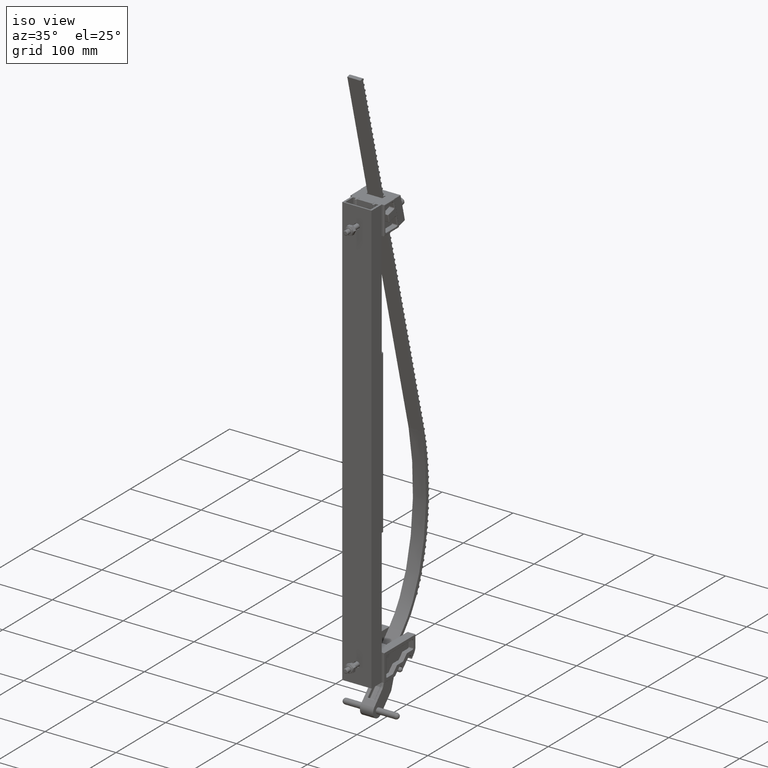
[diagram: clean part render]
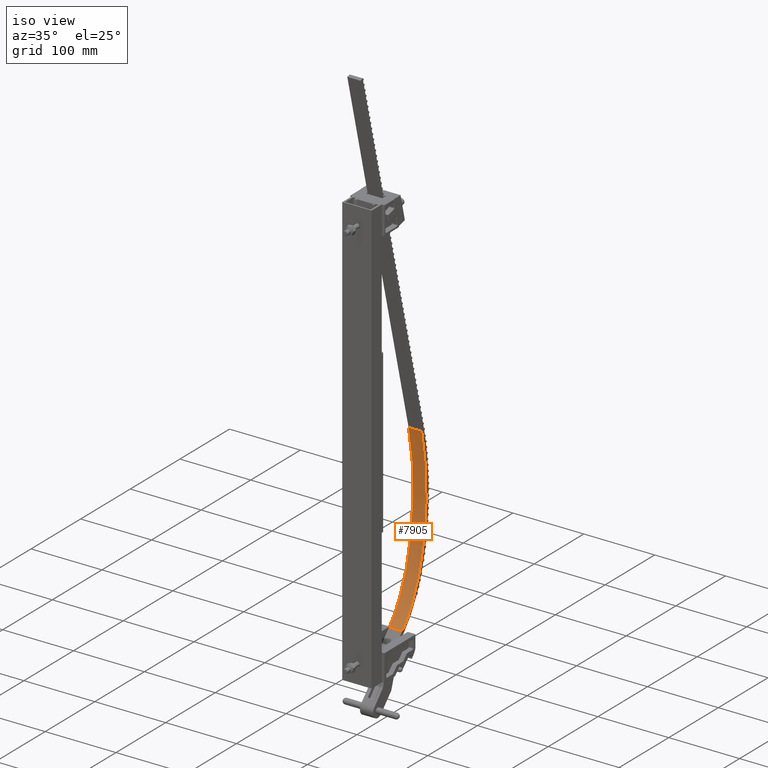
[diagram: same view with one face highlighted and labeled with its STEP entity id]
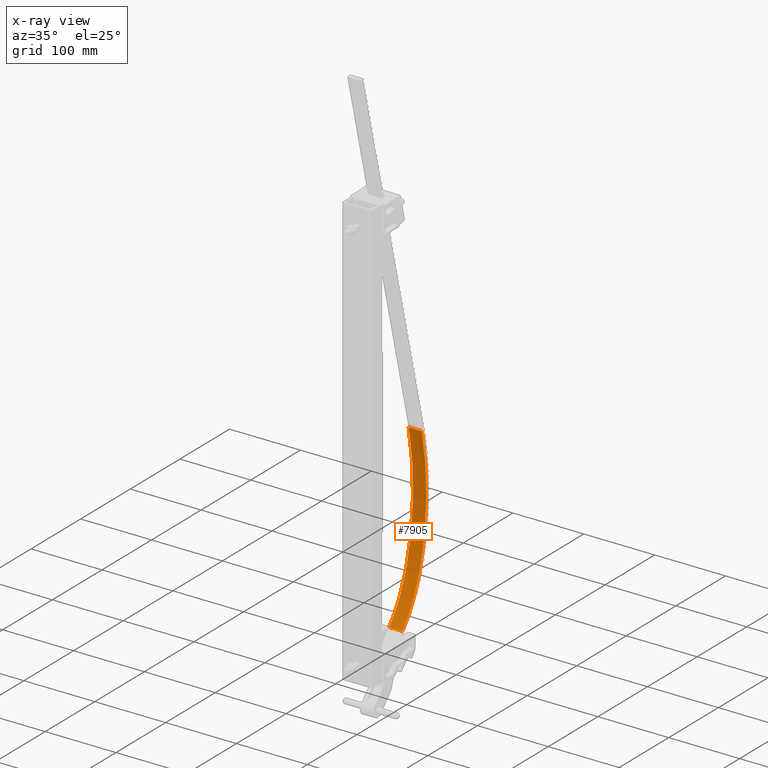
[diagram: x-ray of the same camera — body ghosted, the highlighted face saturated]
A machine part, iso view. The second image highlights one B-rep face of the part: STEP entity #7905.
The next image is the same camera in x-ray: the body ghosted, the highlighted face saturated — about 0% of this face is hidden behind the body in this view.
In plain terms, the highlighted face is a freeform B-spline surface patch.
Its self-contained STEP definition (entity closure, byte-faithful):
#871 = CARTESIAN_POINT ( 'NONE',  ( -11.63104163632180900, -6.154786089411496500, -0.1216666666666666200 ) ) ;
#875 = CARTESIAN_POINT ( 'NONE',  ( -11.63104163632180900, -6.154786089411496500, 0.3649999999999999900 ) ) ;
#876 = CARTESIAN_POINT ( 'NONE',  ( -11.63104163632180900, -6.154786089411496500, 0.1216666666666666600 ) ) ;
#881 = CARTESIAN_POINT ( 'NONE',  ( -11.63104163632180900, -6.154786089411496500, -0.3649999999999999900 ) ) ;
#882 = CARTESIAN_POINT ( 'NONE',  ( -11.60856924477552900, -6.120651361684893200, 0.3649999999999999900 ) ) ;
#883 = CARTESIAN_POINT ( 'NONE',  ( -11.60856924477552900, -6.120651361684893200, 0.1216666666666666600 ) ) ;
#884 = CARTESIAN_POINT ( 'NONE',  ( -11.60856924477552900, -6.120651361684893200, -0.1216666666666666200 ) ) ;
#885 = CARTESIAN_POINT ( 'NONE',  ( -11.60856924477552900, -6.120651361684893200, -0.3649999999999999900 ) ) ;
#886 = CARTESIAN_POINT ( 'NONE',  ( -11.56336162096706300, -6.052906615223022900, 0.3649999999999999900 ) ) ;
#887 = CARTESIAN_POINT ( 'NONE',  ( -11.56336162096706300, -6.052906615223022900, 0.1216666666666666600 ) ) ;
#888 = CARTESIAN_POINT ( 'NONE',  ( -11.56336162096706300, -6.052906615223022900, -0.1216666666666666200 ) ) ;
#889 = CARTESIAN_POINT ( 'NONE',  ( -11.56336162096706300, -6.052906615223022900, -0.3649999999999999900 ) ) ;
#890 = CARTESIAN_POINT ( 'NONE',  ( -11.46810918479961200, -5.913828548213402300, 0.3649999999999999900 ) ) ;
#891 = CARTESIAN_POINT ( 'NONE',  ( -11.46810918479961200, -5.913828548213402300, 0.1216666666666666600 ) ) ;
#892 = CARTESIAN_POINT ( 'NONE',  ( -11.46810918479961200, -5.913828548213402300, -0.1216666666666666200 ) ) ;
#893 = CARTESIAN_POINT ( 'NONE',  ( -11.46810918479961200, -5.913828548213402300, -0.3649999999999999900 ) ) ;
#894 = CARTESIAN_POINT ( 'NONE',  ( -11.34222502115957600, -5.736793446306310600, 0.3649999999999999900 ) ) ;
#895 = CARTESIAN_POINT ( 'NONE',  ( -11.34222502115957600, -5.736793446306310600, 0.1216666666666666600 ) ) ;
#896 = CARTESIAN_POINT ( 'NONE',  ( -11.34222502115957600, -5.736793446306310600, -0.1216666666666666200 ) ) ;
#897 = CARTESIAN_POINT ( 'NONE',  ( -11.34222502115957600, -5.736793446306310600, -0.3649999999999999900 ) ) ;
#898 = CARTESIAN_POINT ( 'NONE',  ( -11.18041873528402000, -5.519684893013219600, 0.3649999999999999900 ) ) ;
#899 = CARTESIAN_POINT ( 'NONE',  ( -11.18041873528402000, -5.519684893013219600, 0.1216666666666666600 ) ) ;
#900 = CARTESIAN_POINT ( 'NONE',  ( -11.18041873528402000, -5.519684893013219600, -0.1216666666666666200 ) ) ;
#901 = CARTESIAN_POINT ( 'NONE',  ( -11.18041873528402000, -5.519684893013219600, -0.3649999999999999900 ) ) ;
#902 = CARTESIAN_POINT ( 'NONE',  ( -10.95112162755937600, -5.225420525473106500, 0.3649999999999999900 ) ) ;
#903 = CARTESIAN_POINT ( 'NONE',  ( -10.95112162755937600, -5.225420525473106500, 0.1216666666666666600 ) ) ;
#904 = CARTESIAN_POINT ( 'NONE',  ( -10.95112162755937600, -5.225420525473106500, -0.1216666666666666200 ) ) ;
#905 = CARTESIAN_POINT ( 'NONE',  ( -10.95112162755937600, -5.225420525473106500, -0.3649999999999999900 ) ) ;
#906 = CARTESIAN_POINT ( 'NONE',  ( -10.63998910796446000, -4.850470746671930100, 0.3650000000000003200 ) ) ;
#907 = CARTESIAN_POINT ( 'NONE',  ( -10.63998910796446000, -4.850470746671930100, 0.1216666666666669900 ) ) ;
#908 = CARTESIAN_POINT ( 'NONE',  ( -10.63998910796446000, -4.850470746671930100, -0.1216666666666662800 ) ) ;
#909 = CARTESIAN_POINT ( 'NONE',  ( -10.63998910796446000, -4.850470746671930100, -0.3649999999999996600 ) ) ;
#910 = CARTESIAN_POINT ( 'NONE',  ( -10.23067011740217300, -4.395558168083829800, 0.3649999999999999900 ) ) ;
#911 = CARTESIAN_POINT ( 'NONE',  ( -10.23067011740217300, -4.395558168083829800, 0.1216666666666666600 ) ) ;
#912 = CARTESIAN_POINT ( 'NONE',  ( -10.23067011740217300, -4.395558168083829800, -0.1216666666666666200 ) ) ;
#913 = CARTESIAN_POINT ( 'NONE',  ( -10.23067011740217300, -4.395558168083829800, -0.3649999999999999900 ) ) ;
#914 = CARTESIAN_POINT ( 'NONE',  ( -9.788599811860292400, -3.941956480966241300, 0.3649999999999999900 ) ) ;
#915 = CARTESIAN_POINT ( 'NONE',  ( -9.788599811860292400, -3.941956480966241300, 0.1216666666666666600 ) ) ;
#916 = CARTESIAN_POINT ( 'NONE',  ( -9.788599811860292400, -3.941956480966241300, -0.1216666666666666200 ) ) ;
#917 = CARTESIAN_POINT ( 'NONE',  ( -9.788599811860292400, -3.941956480966241300, -0.3649999999999999900 ) ) ;
#918 = CARTESIAN_POINT ( 'NONE',  ( -9.159805424630567600, -3.347245370382072600, 0.3649999999999999900 ) ) ;
#919 = CARTESIAN_POINT ( 'NONE',  ( -9.159805424630567600, -3.347245370382072600, 0.1216666666666666600 ) ) ;
#920 = CARTESIAN_POINT ( 'NONE',  ( -9.159805424630567600, -3.347245370382072600, -0.1216666666666666200 ) ) ;
#921 = CARTESIAN_POINT ( 'NONE',  ( -9.159805424630567600, -3.347245370382072600, -0.3649999999999999900 ) ) ;
#922 = CARTESIAN_POINT ( 'NONE',  ( -8.308069545309001200, -2.638350166030812200, 0.3650000000000003200 ) ) ;
#923 = CARTESIAN_POINT ( 'NONE',  ( -8.308069545309001200, -2.638350166030812200, 0.1216666666666669900 ) ) ;
#924 = CARTESIAN_POINT ( 'NONE',  ( -8.308069545309001200, -2.638350166030812200, -0.1216666666666662800 ) ) ;
#925 = CARTESIAN_POINT ( 'NONE',  ( -8.308069545309001200, -2.638350166030812200, -0.3649999999999996600 ) ) ;
#926 = CARTESIAN_POINT ( 'NONE',  ( -7.206935736600928300, -1.892352270403434100, 0.3649999999999999900 ) ) ;
#927 = CARTESIAN_POINT ( 'NONE',  ( -7.206935736600928300, -1.892352270403434100, 0.1216666666666666600 ) ) ;
#928 = CARTESIAN_POINT ( 'NONE',  ( -7.206935736600928300, -1.892352270403434100, -0.1216666666666666200 ) ) ;
#929 = CARTESIAN_POINT ( 'NONE',  ( -7.206935736600928300, -1.892352270403434100, -0.3649999999999999900 ) ) ;
#930 = CARTESIAN_POINT ( 'NONE',  ( -6.245718450763376100, -1.398695466148435400, 0.3650000000000003200 ) ) ;
#931 = CARTESIAN_POINT ( 'NONE',  ( -6.245718450763376100, -1.398695466148435400, 0.1216666666666669900 ) ) ;
#932 = CARTESIAN_POINT ( 'NONE',  ( -6.245718450763376100, -1.398695466148435400, -0.1216666666666662800 ) ) ;
#933 = CARTESIAN_POINT ( 'NONE',  ( -6.245718450763376100, -1.398695466148435400, -0.3649999999999996600 ) ) ;
#934 = CARTESIAN_POINT ( 'NONE',  ( -5.464272849355996400, -1.104387223785562500, 0.3649999999999999900 ) ) ;
#935 = CARTESIAN_POINT ( 'NONE',  ( -5.464272849355996400, -1.104387223785562500, 0.1216666666666666600 ) ) ;
#936 = CARTESIAN_POINT ( 'NONE',  ( -5.464272849355996400, -1.104387223785562500, -0.1216666666666666200 ) ) ;
#937 = CARTESIAN_POINT ( 'NONE',  ( -5.464272849355996400, -1.104387223785562500, -0.3649999999999999900 ) ) ;
#938 = CARTESIAN_POINT ( 'NONE',  ( -4.875321289066301100, -0.9396869062039775500, 0.3649999999999999900 ) ) ;
#939 = CARTESIAN_POINT ( 'NONE',  ( -4.875321289066301100, -0.9396869062039775500, 0.1216666666666666600 ) ) ;
#940 = CARTESIAN_POINT ( 'NONE',  ( -4.875321289066301100, -0.9396869062039775500, -0.1216666666666666200 ) ) ;
#941 = CARTESIAN_POINT ( 'NONE',  ( -4.875321289066301100, -0.9396869062039775500, -0.3649999999999999900 ) ) ;
#942 = CARTESIAN_POINT ( 'NONE',  ( -4.385061063135403000, -0.8537694956389501000, 0.3649999999999999900 ) ) ;
#943 = CARTESIAN_POINT ( 'NONE',  ( -4.385061063135403000, -0.8537694956389501000, 0.1216666666666666600 ) ) ;
#944 = CARTESIAN_POINT ( 'NONE',  ( -4.385061063135403000, -0.8537694956389501000, -0.1216666666666666200 ) ) ;
#945 = CARTESIAN_POINT ( 'NONE',  ( -4.385061063135403000, -0.8537694956389501000, -0.3649999999999999900 ) ) ;
#946 = CARTESIAN_POINT ( 'NONE',  ( -3.994343807446917100, -0.8185218128024578400, 0.3649999999999999900 ) ) ;
#947 = CARTESIAN_POINT ( 'NONE',  ( -3.994343807446917100, -0.8185218128024578400, 0.1216666666666666600 ) ) ;
#948 = CARTESIAN_POINT ( 'NONE',  ( -3.994343807446917100, -0.8185218128024578400, -0.1216666666666666200 ) ) ;
#949 = CARTESIAN_POINT ( 'NONE',  ( -3.994343807446917100, -0.8185218128024578400, -0.3649999999999999900 ) ) ;
#950 = CARTESIAN_POINT ( 'NONE',  ( -3.800322297489636900, -0.8124999999999990000, 0.3649999999999999900 ) ) ;
#951 = CARTESIAN_POINT ( 'NONE',  ( -3.800322297489636900, -0.8124999999999990000, 0.1216666666666666600 ) ) ;
#952 = CARTESIAN_POINT ( 'NONE',  ( -3.800322297489636900, -0.8124999999999990000, -0.1216666666666666200 ) ) ;
#953 = CARTESIAN_POINT ( 'NONE',  ( -3.800322297489636900, -0.8124999999999990000, -0.3649999999999999900 ) ) ;
#954 = CARTESIAN_POINT ( 'NONE',  ( -3.703076168339256600, -0.8125000000000012200, 0.3649999999999999900 ) ) ;
#955 = CARTESIAN_POINT ( 'NONE',  ( -3.703076168339256600, -0.8125000000000012200, 0.1216666666666666600 ) ) ;
#956 = CARTESIAN_POINT ( 'NONE',  ( -3.703076168339256600, -0.8125000000000012200, -0.1216666666666666200 ) ) ;
#957 = CARTESIAN_POINT ( 'NONE',  ( -3.703076168339256600, -0.8125000000000012200, -0.3649999999999999900 ) ) ;
#7905 = ADVANCED_FACE ( 'NONE', ( #35902 ), #42992, .F. ) ;
#12723 = CARTESIAN_POINT ( 'NONE',  ( -11.63104163525621200, -6.154786090112280000, 0.3649999999999999900 ) ) ;
#12733 = CARTESIAN_POINT ( 'NONE',  ( -11.60856924477530100, -6.120651361684552100, 0.3649999999999999900 ) ) ;
#12734 = CARTESIAN_POINT ( 'NONE',  ( -11.56336162096694200, -6.052906615222847900, 0.3649999999999999900 ) ) ;
#12735 = CARTESIAN_POINT ( 'NONE',  ( -11.46810918479961200, -5.913828548213402300, 0.3649999999999999900 ) ) ;
#12736 = CARTESIAN_POINT ( 'NONE',  ( -11.34222502115957600, -5.736793446306310600, 0.3649999999999999900 ) ) ;
#12737 = CARTESIAN_POINT ( 'NONE',  ( -11.18041873528402000, -5.519684893013219600, 0.3649999999999999900 ) ) ;
#12738 = CARTESIAN_POINT ( 'NONE',  ( -10.95112162755937600, -5.225420525473106500, 0.3649999999999999900 ) ) ;
#12739 = CARTESIAN_POINT ( 'NONE',  ( -10.63998910796446000, -4.850470746671930100, 0.3650000000000003200 ) ) ;
#12740 = CARTESIAN_POINT ( 'NONE',  ( -10.23067011740217300, -4.395558168083829800, 0.3649999999999999900 ) ) ;
#12741 = CARTESIAN_POINT ( 'NONE',  ( -9.788599811860292400, -3.941956480966241300, 0.3649999999999999900 ) ) ;
#12742 = CARTESIAN_POINT ( 'NONE',  ( -9.159805424630567600, -3.347245370382072600, 0.3649999999999999900 ) ) ;
#12743 = CARTESIAN_POINT ( 'NONE',  ( -8.308069545309001200, -2.638350166030812200, 0.3650000000000003200 ) ) ;
#12744 = CARTESIAN_POINT ( 'NONE',  ( -7.206935736600928300, -1.892352270403434100, 0.3649999999999999900 ) ) ;
#12745 = CARTESIAN_POINT ( 'NONE',  ( -6.245718450763376100, -1.398695466148435400, 0.3650000000000003200 ) ) ;
#12746 = CARTESIAN_POINT ( 'NONE',  ( -5.464272849355996400, -1.104387223785562500, 0.3649999999999999900 ) ) ;
#12747 = CARTESIAN_POINT ( 'NONE',  ( -4.875321289066301100, -0.9396869062039775500, 0.3649999999999999900 ) ) ;
#12748 = CARTESIAN_POINT ( 'NONE',  ( -4.385061063135403000, -0.8537694956389501000, 0.3649999999999999900 ) ) ;
#12749 = CARTESIAN_POINT ( 'NONE',  ( -3.994343807446917100, -0.8185218128024578400, 0.3649999999999999900 ) ) ;
#12750 = CARTESIAN_POINT ( 'NONE',  ( -3.800322297489636900, -0.8124999999999990000, 0.3649999999999999900 ) ) ;
#12751 = CARTESIAN_POINT ( 'NONE',  ( -3.703076168339256600, -0.8125000000000012200, 0.3649999999999999900 ) ) ;
#12760 = CARTESIAN_POINT ( 'NONE',  ( -11.63104163525621200, -6.154786090112280000, 0.3649999999999999900 ) ) ;
#12761 = DIRECTION ( 'NONE',  ( 2.280301054154487300E-031, -1.201780285297635200E-031, -1.000000000000000000 ) ) ;
#12766 = CARTESIAN_POINT ( 'NONE',  ( -11.63104163525621200, -6.154786090112280000, -0.3649999999999999900 ) ) ;
#12767 = CARTESIAN_POINT ( 'NONE',  ( -3.703076168339256600, -0.8125000000000012200, 0.3649999999999999900 ) ) ;
#12768 = DIRECTION ( 'NONE',  ( 2.280301054154487300E-031, -1.201780285297635200E-031, -1.000000000000000000 ) ) ;
#12769 = CARTESIAN_POINT ( 'NONE',  ( -11.60856924477530100, -6.120651361684552100, -0.3649999999999999900 ) ) ;
#12770 = CARTESIAN_POINT ( 'NONE',  ( -11.56336162096694200, -6.052906615222847900, -0.3649999999999999900 ) ) ;
#12771 = CARTESIAN_POINT ( 'NONE',  ( -11.46810918479961200, -5.913828548213402300, -0.3649999999999999900 ) ) ;
#12772 = CARTESIAN_POINT ( 'NONE',  ( -11.34222502115957600, -5.736793446306310600, -0.3649999999999999900 ) ) ;
#12773 = CARTESIAN_POINT ( 'NONE',  ( -11.18041873528402000, -5.519684893013219600, -0.3649999999999999900 ) ) ;
#12774 = CARTESIAN_POINT ( 'NONE',  ( -10.95112162755937600, -5.225420525473106500, -0.3649999999999999900 ) ) ;
#12775 = CARTESIAN_POINT ( 'NONE',  ( -10.63998910796446000, -4.850470746671930100, -0.3649999999999996600 ) ) ;
#12776 = CARTESIAN_POINT ( 'NONE',  ( -10.23067011740217300, -4.395558168083829800, -0.3649999999999999900 ) ) ;
#12777 = CARTESIAN_POINT ( 'NONE',  ( -9.788599811860292400, -3.941956480966241300, -0.3649999999999999900 ) ) ;
#12778 = CARTESIAN_POINT ( 'NONE',  ( -9.159805424630567600, -3.347245370382072600, -0.3649999999999999900 ) ) ;
#12779 = CARTESIAN_POINT ( 'NONE',  ( -8.308069545309001200, -2.638350166030812200, -0.3649999999999996600 ) ) ;
#12780 = CARTESIAN_POINT ( 'NONE',  ( -7.206935736600928300, -1.892352270403434100, -0.3649999999999999900 ) ) ;
#12781 = CARTESIAN_POINT ( 'NONE',  ( -6.245718450763376100, -1.398695466148435400, -0.3649999999999996600 ) ) ;
#12782 = CARTESIAN_POINT ( 'NONE',  ( -5.464272849355996400, -1.104387223785562500, -0.3649999999999999900 ) ) ;
#12783 = CARTESIAN_POINT ( 'NONE',  ( -4.875321289066301100, -0.9396869062039775500, -0.3649999999999999900 ) ) ;
#12784 = CARTESIAN_POINT ( 'NONE',  ( -4.385061063135403000, -0.8537694956389501000, -0.3649999999999999900 ) ) ;
#12785 = CARTESIAN_POINT ( 'NONE',  ( -3.994343807446917100, -0.8185218128024578400, -0.3649999999999999900 ) ) ;
#12786 = CARTESIAN_POINT ( 'NONE',  ( -3.800322297489636900, -0.8124999999999990000, -0.3649999999999999900 ) ) ;
#12787 = CARTESIAN_POINT ( 'NONE',  ( -3.703076168339256600, -0.8125000000000012200, -0.3649999999999999900 ) ) ;
#19313 = CARTESIAN_POINT ( 'NONE',  ( -11.63104163525621200, -6.154786090112280000, -0.3649999999999999900 ) ) ;
#19314 = CARTESIAN_POINT ( 'NONE',  ( -11.63104163525621200, -6.154786090112280000, 0.3649999999999999900 ) ) ;
#19315 = CARTESIAN_POINT ( 'NONE',  ( -3.703076168339256600, -0.8125000000000012200, -0.3649999999999999900 ) ) ;
#19316 = CARTESIAN_POINT ( 'NONE',  ( -3.703076168339256600, -0.8125000000000012200, 0.3649999999999999900 ) ) ;
#28422 = VECTOR ( 'NONE', #12768, 39.37007874015748100 ) ;
#28425 = LINE ( 'NONE', #12767, #28422 ) ;
#28428 = LINE ( 'NONE', #12760, #28429 ) ;
#28429 = VECTOR ( 'NONE', #12761, 39.37007874015748100 ) ;
#31137 = B_SPLINE_CURVE_WITH_KNOTS ( 'NONE', 3,
 ( #12723, #12733, #12734, #12735, #12736, #12737, #12738, #12739, #12740, #12741, #12742, #12743, #12744, #12745, #12746, #12747, #12748, #12749, #12750, #12751 ),
 .UNSPECIFIED., .F., .F.,
 ( 4, 1, 1, 1, 1, 1, 1, 1, 1, 1, 1, 1, 1, 1, 1, 1, 1, 4 ),
 ( 0.0001330835039557551200, 0.01562500000000000000, 0.03125000000000000000, 0.06250000000000000000, 0.09375000000000000000, 0.1250000000000000000, 0.1875000000000000000, 0.2500000000000000000, 0.3125000000000000000, 0.3750000000000000000, 0.5000000000000000000, 0.6250000000000000000, 0.7500000000000000000, 0.8125000000000000000, 0.8750000000000000000, 0.9375000000000000000, 0.9687500000000000000, 1.000000000000000000 ),
 .UNSPECIFIED. ) ;
#31140 = B_SPLINE_CURVE_WITH_KNOTS ( 'NONE', 3,
 ( #12766, #12769, #12770, #12771, #12772, #12773, #12774, #12775, #12776, #12777, #12778, #12779, #12780, #12781, #12782, #12783, #12784, #12785, #12786, #12787 ),
 .UNSPECIFIED., .F., .F.,
 ( 4, 1, 1, 1, 1, 1, 1, 1, 1, 1, 1, 1, 1, 1, 1, 1, 1, 4 ),
 ( 0.0001330835039557551200, 0.01562500000000000000, 0.03125000000000000000, 0.06250000000000000000, 0.09375000000000000000, 0.1250000000000000000, 0.1875000000000000000, 0.2500000000000000000, 0.3125000000000000000, 0.3750000000000000000, 0.5000000000000000000, 0.6250000000000000000, 0.7500000000000000000, 0.8125000000000000000, 0.8750000000000000000, 0.9375000000000000000, 0.9687500000000000000, 1.000000000000000000 ),
 .UNSPECIFIED. ) ;
#33586 = ORIENTED_EDGE ( 'NONE', *, *, #44021, .T. ) ;
#33588 = ORIENTED_EDGE ( 'NONE', *, *, #44020, .F. ) ;
#33590 = ORIENTED_EDGE ( 'NONE', *, *, #44013, .F. ) ;
#33592 = ORIENTED_EDGE ( 'NONE', *, *, #44017, .T. ) ;
#35902 = FACE_OUTER_BOUND ( 'NONE', #44979, .T. ) ;
#37863 = VERTEX_POINT ( 'NONE', #19313 ) ;
#37864 = VERTEX_POINT ( 'NONE', #19314 ) ;
#37865 = VERTEX_POINT ( 'NONE', #19315 ) ;
#37866 = VERTEX_POINT ( 'NONE', #19316 ) ;
#42992 = B_SPLINE_SURFACE_WITH_KNOTS ( 'NONE', 3, 3, ( 
 ( #875, #876, #871, #881 ),
 ( #882, #883, #884, #885 ),
 ( #886, #887, #888, #889 ),
 ( #890, #891, #892, #893 ),
 ( #894, #895, #896, #897 ),
 ( #898, #899, #900, #901 ),
 ( #902, #903, #904, #905 ),
 ( #906, #907, #908, #909 ),
 ( #910, #911, #912, #913 ),
 ( #914, #915, #916, #917 ),
 ( #918, #919, #920, #921 ),
 ( #922, #923, #924, #925 ),
 ( #926, #927, #928, #929 ),
 ( #930, #931, #932, #933 ),
 ( #934, #935, #936, #937 ),
 ( #938, #939, #940, #941 ),
 ( #942, #943, #944, #945 ),
 ( #946, #947, #948, #949 ),
 ( #950, #951, #952, #953 ),
 ( #954, #955, #956, #957 ) ),
 .UNSPECIFIED., .F., .F., .F.,
 ( 4, 1, 1, 1, 1, 1, 1, 1, 1, 1, 1, 1, 1, 1, 1, 1, 1, 4 ),
 ( 4, 4 ),
 ( 0.0001330835038777820400, 0.01562500000000000000, 0.03125000000000000000, 0.06250000000000000000, 0.09375000000000000000, 0.1250000000000000000, 0.1875000000000000000, 0.2500000000000000000, 0.3125000000000000000, 0.3750000000000000000, 0.5000000000000000000, 0.6250000000000000000, 0.7500000000000000000, 0.8125000000000000000, 0.8750000000000000000, 0.9375000000000000000, 0.9687500000000000000, 1.000000000000000000 ),
 ( 0.0000000000000000000, 1.000000000000000000 ),
 .UNSPECIFIED. ) ;
#44013 = EDGE_CURVE ( 'NONE', #37864, #37866, #31137, .T. ) ;
#44017 = EDGE_CURVE ( 'NONE', #37864, #37863, #28428, .T. ) ;
#44020 = EDGE_CURVE ( 'NONE', #37866, #37865, #28425, .T. ) ;
#44021 = EDGE_CURVE ( 'NONE', #37863, #37865, #31140, .T. ) ;
#44979 = EDGE_LOOP ( 'NONE', ( #33586, #33588, #33590, #33592 ) ) ;